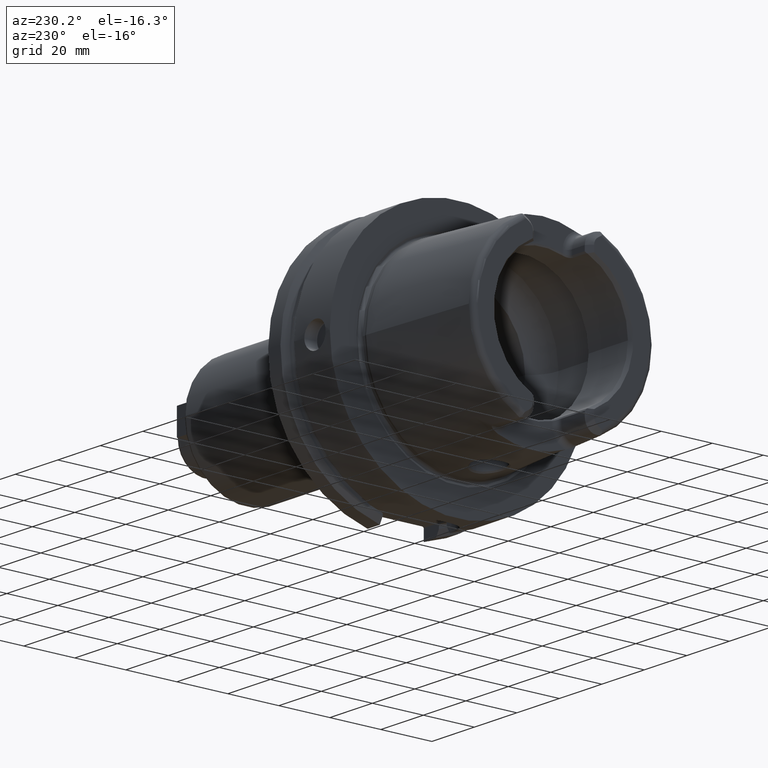
[diagram: clean part render]
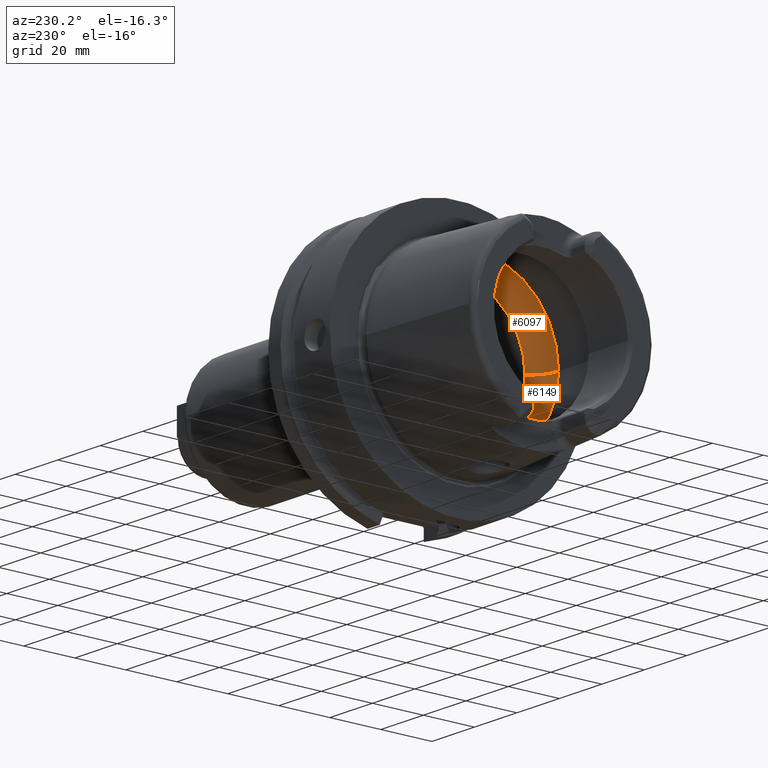
[diagram: same view with one multi-face feature highlighted, each face labeled with its STEP entity id]
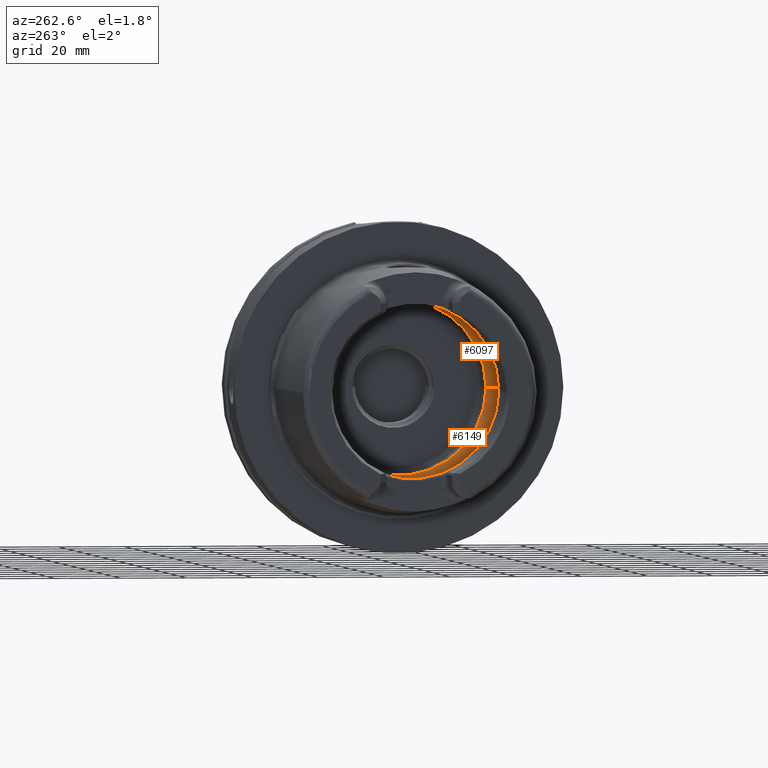
[diagram: same view with one multi-face feature highlighted, each face labeled with its STEP entity id]
A machine part, auxiliary view. The highlighted faces form ONE feature: a constant-radius fillet chain: 2 tangent blend faces with common blend radius 12 mm. The faces share edges in the B-rep.
A second angle (auxiliary view) of the same feature is appended — it is thin or edge-on in the first view.
Their STEP definitions:
[1] entity #6097 (Torus):
#2196=CARTESIAN_POINT('',(-9.E0,0.E0,3.147008518506E1));
#2197=CARTESIAN_POINT('',(-9.E0,2.141252053900E-1,3.147008518506E1));
#2198=CARTESIAN_POINT('',(-9.022897579641E0,6.436731047292E-1,
3.146736073712E1));
#2199=CARTESIAN_POINT('',(-9.127427069178E0,1.286248325661E0,3.145454181001E1));
#2200=CARTESIAN_POINT('',(-9.301031145484E0,1.913730198969E0,3.143197920586E1));
#2201=CARTESIAN_POINT('',(-9.539946842554E0,2.515068696018E0,3.139832080387E1));
#2202=CARTESIAN_POINT('',(-9.738529982809E0,2.891645116602E0,3.136752560017E1));
#2203=CARTESIAN_POINT('',(-9.846794344809E0,3.073185883624E0,3.134972932139E1));
#2205=CARTESIAN_POINT('',(-9.846794344809E0,-3.073185883624E0,
3.134972932139E1));
#2206=CARTESIAN_POINT('',(-9.738534471789E0,-2.891652643851E0,
3.136752486228E1));
#2207=CARTESIAN_POINT('',(-9.539946477828E0,-2.515078628379E0,
3.139832107651E1));
#2208=CARTESIAN_POINT('',(-9.300974895981E0,-1.913573808680E0,
3.143198691417E1));
#2209=CARTESIAN_POINT('',(-9.127396838585E0,-1.286102505522E0,
3.145454553504E1));
#2210=CARTESIAN_POINT('',(-9.022886850943E0,-6.435548392987E-1,
3.146736203025E1));
#2211=CARTESIAN_POINT('',(-9.E0,-2.140793620984E-1,3.147008518506E1));
#2212=CARTESIAN_POINT('',(-9.E0,0.E0,3.147008518506E1));
#2214=CARTESIAN_POINT('',(-1.E-1,0.E0,0.E0));
#2215=DIRECTION('',(1.E0,0.E0,0.E0));
#2216=DIRECTION('',(0.E0,1.E0,0.E0));
#2217=AXIS2_PLACEMENT_3D('',#2214,#2215,#2216);
#2243=CARTESIAN_POINT('',(-9.846794344809E0,0.E0,0.E0));
#2244=DIRECTION('',(1.E0,0.E0,0.E0));
#2245=DIRECTION('',(0.E0,1.E0,0.E0));
#2246=AXIS2_PLACEMENT_3D('',#2243,#2244,#2245);
#2248=CARTESIAN_POINT('',(-9.846794344809E0,0.E0,0.E0));
#2249=DIRECTION('',(1.E0,0.E0,0.E0));
#2250=DIRECTION('',(0.E0,-9.756145662299E-2,9.952295022665E-1));
#2251=AXIS2_PLACEMENT_3D('',#2248,#2249,#2250);
#2352=CARTESIAN_POINT('',(-9.846794344809E0,1.95E1,0.E0));
#2353=DIRECTION('',(0.E0,0.E0,1.E0));
#2354=DIRECTION('',(8.122328620674E-1,5.833333333333E-1,0.E0));
#2355=AXIS2_PLACEMENT_3D('',#2352,#2353,#2354);
#2362=CARTESIAN_POINT('',(-9.846794344809E0,-1.95E1,0.E0));
#2363=DIRECTION('',(0.E0,0.E0,-1.E0));
#2364=DIRECTION('',(8.122328620674E-1,-5.833333333333E-1,0.E0));
#2365=AXIS2_PLACEMENT_3D('',#2362,#2363,#2364);
#2867=CARTESIAN_POINT('',(-1.E-1,2.65E1,0.E0));
#2868=VERTEX_POINT('',#2867);
#2869=CARTESIAN_POINT('',(-9.846794344809E0,3.15E1,0.E0));
#2870=VERTEX_POINT('',#2869);
#2879=CARTESIAN_POINT('',(-1.E-1,-2.65E1,0.E0));
#2880=VERTEX_POINT('',#2879);
#2881=CARTESIAN_POINT('',(-9.846794344809E0,-3.15E1,0.E0));
#2882=VERTEX_POINT('',#2881);
#3048=VERTEX_POINT('',#2196);
#3049=VERTEX_POINT('',#2203);
#3050=VERTEX_POINT('',#2205);
#6078=CARTESIAN_POINT('',(-9.846794344809E0,0.E0,0.E0));
#6079=DIRECTION('',(1.E0,0.E0,0.E0));
#6080=DIRECTION('',(0.E0,-1.E0,0.E0));
#6081=AXIS2_PLACEMENT_3D('',#6078,#6079,#6080);
#6082=TOROIDAL_SURFACE('',#6081,1.95E1,1.2E1);
#6083=ORIENTED_EDGE('',*,*,#6055,.F.);
#6084=ORIENTED_EDGE('',*,*,#5781,.F.);
#6086=ORIENTED_EDGE('',*,*,#6085,.T.);
#6088=ORIENTED_EDGE('',*,*,#6087,.F.);
#6090=ORIENTED_EDGE('',*,*,#6089,.F.);
#6092=ORIENTED_EDGE('',*,*,#6091,.T.);
#6094=ORIENTED_EDGE('',*,*,#6093,.T.);
#6095=EDGE_LOOP('',(#6083,#6084,#6086,#6088,#6090,#6092,#6094));
#6096=FACE_OUTER_BOUND('',#6095,.F.);
#6097=ADVANCED_FACE('',(#6096),#6082,.F.);
#2204=B_SPLINE_CURVE_WITH_KNOTS('',3,(#2196,#2197,#2198,#2199,#2200,#2201,#2202,
#2203),.UNSPECIFIED.,.F.,.F.,(4,1,1,1,1,4),(0.E0,2.E-1,4.E-1,6.E-1,8.E-1,1.E0),
.UNSPECIFIED.);
#2213=B_SPLINE_CURVE_WITH_KNOTS('',3,(#2205,#2206,#2207,#2208,#2209,#2210,#2211,
#2212),.UNSPECIFIED.,.F.,.F.,(4,1,1,1,1,4),(0.E0,2.E-1,4.E-1,6.E-1,8.E-1,1.E0),
.UNSPECIFIED.);
#2218=CIRCLE('',#2217,2.65E1);
#2247=CIRCLE('',#2246,3.15E1);
#2252=CIRCLE('',#2251,3.15E1);
#2356=CIRCLE('',#2355,1.2E1);
#2366=CIRCLE('',#2365,1.2E1);
#5781=EDGE_CURVE('',#3050,#3048,#2213,.T.);
#6055=EDGE_CURVE('',#3048,#3049,#2204,.T.);
#6085=EDGE_CURVE('',#3050,#2882,#2252,.T.);
#6087=EDGE_CURVE('',#2880,#2882,#2366,.T.);
#6089=EDGE_CURVE('',#2868,#2880,#2218,.T.);
#6091=EDGE_CURVE('',#2868,#2870,#2356,.T.);
#6093=EDGE_CURVE('',#2870,#3049,#2247,.T.);
[2] entity #6149 (Torus):
#2325=CARTESIAN_POINT('',(-9.846794344809E0,0.E0,0.E0));
#2326=DIRECTION('',(-1.E0,0.E0,0.E0));
#2327=DIRECTION('',(0.E0,-9.756145662299E-2,-9.952295022665E-1));
#2328=AXIS2_PLACEMENT_3D('',#2325,#2326,#2327);
#2338=CARTESIAN_POINT('',(-9.846794344809E0,0.E0,0.E0));
#2339=DIRECTION('',(-1.E0,0.E0,0.E0));
#2340=DIRECTION('',(0.E0,1.E0,0.E0));
#2341=AXIS2_PLACEMENT_3D('',#2338,#2339,#2340);
#2343=CARTESIAN_POINT('',(-9.846794344809E0,3.073185883624E0,
-3.134972932139E1));
#2344=CARTESIAN_POINT('',(-9.738537060689E0,2.891656984993E0,
-3.136752443672E1));
#2345=CARTESIAN_POINT('',(-9.539962893717E0,2.515101251431E0,
-3.139831839188E1));
#2346=CARTESIAN_POINT('',(-9.301049424477E0,1.913783257480E0,
-3.143197673752E1));
#2347=CARTESIAN_POINT('',(-9.127438432729E0,1.286303015996E0,
-3.145454039544E1));
#2348=CARTESIAN_POINT('',(-9.022899506342E0,6.437010581526E-1,
-3.146736051152E1));
#2349=CARTESIAN_POINT('',(-9.E0,2.141354428497E-1,-3.147008518506E1));
#2350=CARTESIAN_POINT('',(-9.E0,0.E0,-3.147008518506E1));
#2352=CARTESIAN_POINT('',(-9.846794344809E0,1.95E1,0.E0));
#2353=DIRECTION('',(0.E0,0.E0,1.E0));
#2354=DIRECTION('',(8.122328620674E-1,5.833333333333E-1,0.E0));
#2355=AXIS2_PLACEMENT_3D('',#2352,#2353,#2354);
#2357=CARTESIAN_POINT('',(-1.E-1,0.E0,0.E0));
#2358=DIRECTION('',(-1.E0,0.E0,0.E0));
#2359=DIRECTION('',(0.E0,1.E0,0.E0));
#2360=AXIS2_PLACEMENT_3D('',#2357,#2358,#2359);
#2362=CARTESIAN_POINT('',(-9.846794344809E0,-1.95E1,0.E0));
#2363=DIRECTION('',(0.E0,0.E0,-1.E0));
#2364=DIRECTION('',(8.122328620674E-1,-5.833333333333E-1,0.E0));
#2365=AXIS2_PLACEMENT_3D('',#2362,#2363,#2364);
#2367=CARTESIAN_POINT('',(-9.E0,0.E0,-3.147008518506E1));
#2368=CARTESIAN_POINT('',(-9.E0,-2.140673862591E-1,-3.147008518506E1));
#2369=CARTESIAN_POINT('',(-9.022884475739E0,-6.435227636510E-1,
-3.146736230982E1));
#2370=CARTESIAN_POINT('',(-9.127385021154E0,-1.286046048393E0,
-3.145454700706E1));
#2371=CARTESIAN_POINT('',(-9.300956096822E0,-1.913519178713E0,
-3.143198945276E1));
#2372=CARTESIAN_POINT('',(-9.539929943663E0,-2.515045104426E0,
-3.139832356097E1));
#2373=CARTESIAN_POINT('',(-9.738527185842E0,-2.891640426569E0,
-3.136752605993E1));
#2374=CARTESIAN_POINT('',(-9.846794344809E0,-3.073185883624E0,
-3.134972932139E1));
#2867=CARTESIAN_POINT('',(-1.E-1,2.65E1,0.E0));
#2868=VERTEX_POINT('',#2867);
#2869=CARTESIAN_POINT('',(-9.846794344809E0,3.15E1,0.E0));
#2870=VERTEX_POINT('',#2869);
#2879=CARTESIAN_POINT('',(-1.E-1,-2.65E1,0.E0));
#2880=VERTEX_POINT('',#2879);
#2881=CARTESIAN_POINT('',(-9.846794344809E0,-3.15E1,0.E0));
#2882=VERTEX_POINT('',#2881);
#3052=VERTEX_POINT('',#2343);
#3053=VERTEX_POINT('',#2350);
#3054=VERTEX_POINT('',#2374);
#6134=CARTESIAN_POINT('',(-9.846794344809E0,0.E0,0.E0));
#6135=DIRECTION('',(1.E0,0.E0,0.E0));
#6136=DIRECTION('',(0.E0,-1.E0,0.E0));
#6137=AXIS2_PLACEMENT_3D('',#6134,#6135,#6136);
#6138=TOROIDAL_SURFACE('',#6137,1.95E1,1.2E1);
#6139=ORIENTED_EDGE('',*,*,#6072,.F.);
#6140=ORIENTED_EDGE('',*,*,#6129,.F.);
#6141=ORIENTED_EDGE('',*,*,#6091,.F.);
#6143=ORIENTED_EDGE('',*,*,#6142,.T.);
#6144=ORIENTED_EDGE('',*,*,#6087,.T.);
#6145=ORIENTED_EDGE('',*,*,#6123,.F.);
#6146=ORIENTED_EDGE('',*,*,#5796,.F.);
#6147=EDGE_LOOP('',(#6139,#6140,#6141,#6143,#6144,#6145,#6146));
#6148=FACE_OUTER_BOUND('',#6147,.F.);
#6149=ADVANCED_FACE('',(#6148),#6138,.F.);
#2329=CIRCLE('',#2328,3.15E1);
#2342=CIRCLE('',#2341,3.15E1);
#2351=B_SPLINE_CURVE_WITH_KNOTS('',3,(#2343,#2344,#2345,#2346,#2347,#2348,#2349,
#2350),.UNSPECIFIED.,.F.,.F.,(4,1,1,1,1,4),(0.E0,2.E-1,4.E-1,6.E-1,8.E-1,1.E0),
.UNSPECIFIED.);
#2356=CIRCLE('',#2355,1.2E1);
#2361=CIRCLE('',#2360,2.65E1);
#2366=CIRCLE('',#2365,1.2E1);
#2375=B_SPLINE_CURVE_WITH_KNOTS('',3,(#2367,#2368,#2369,#2370,#2371,#2372,#2373,
#2374),.UNSPECIFIED.,.F.,.F.,(4,1,1,1,1,4),(0.E0,2.E-1,4.E-1,6.E-1,8.E-1,1.E0),
.UNSPECIFIED.);
#5796=EDGE_CURVE('',#3053,#3054,#2375,.T.);
#6072=EDGE_CURVE('',#3052,#3053,#2351,.T.);
#6087=EDGE_CURVE('',#2880,#2882,#2366,.T.);
#6091=EDGE_CURVE('',#2868,#2870,#2356,.T.);
#6123=EDGE_CURVE('',#3054,#2882,#2329,.T.);
#6129=EDGE_CURVE('',#2870,#3052,#2342,.T.);
#6142=EDGE_CURVE('',#2868,#2880,#2361,.T.);